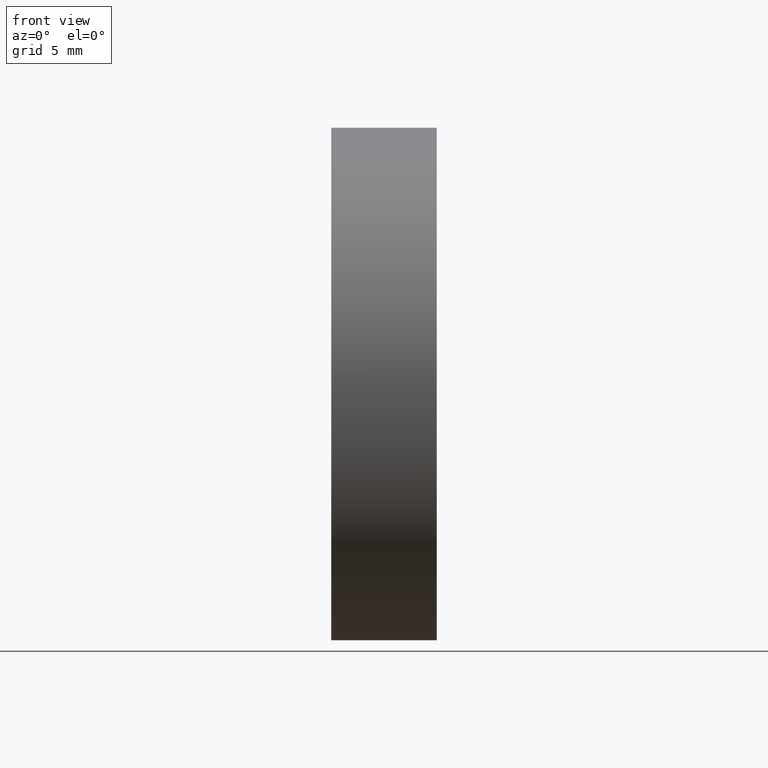
[diagram: clean part render]
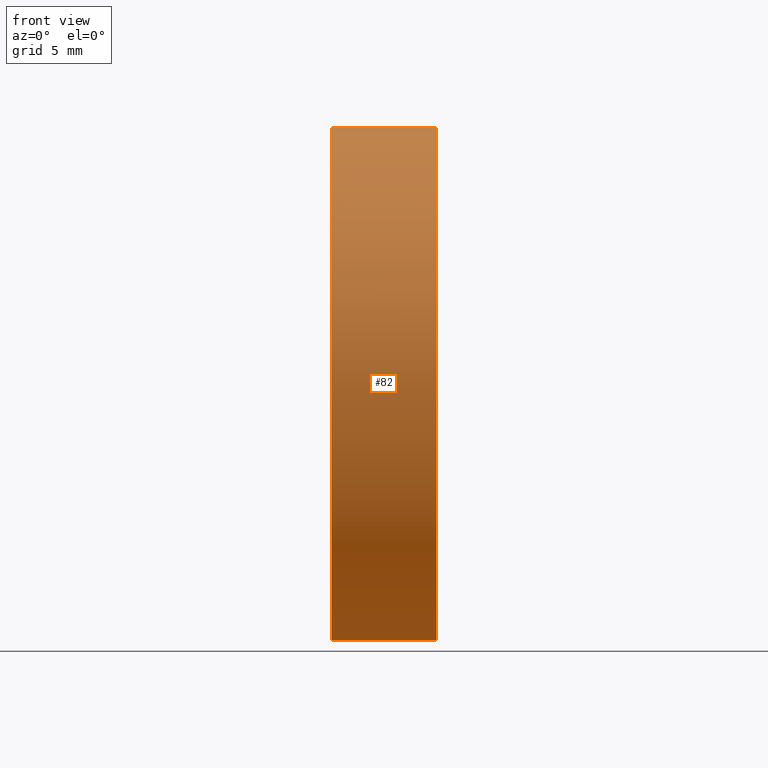
[diagram: same view with one face highlighted and labeled with its STEP entity id]
A machine part, front view. The second image highlights one B-rep face of the part: STEP entity #82.
In plain terms, the highlighted cylindrical surface (partial cylindrical patch) has radius 15 mm, axis along (1, -0, -0).
Its self-contained STEP definition (entity closure, byte-faithful):
#6 = CIRCLE ( 'NONE', #113, 15.00000000000000000 ) ;
#10 = DIRECTION ( 'NONE',  ( 0.000000000000000000, 0.000000000000000000, -1.000000000000000000 ) ) ;
#13 = ORIENTED_EDGE ( 'NONE', *, *, #194, .T. ) ;
#18 = EDGE_CURVE ( 'NONE', #29, #40, #191, .T. ) ;
#29 = VERTEX_POINT ( 'NONE', #115 ) ;
#30 = DIRECTION ( 'NONE',  ( 1.000000000000000000, -0.000000000000000000, -0.000000000000000000 ) ) ;
#40 = VERTEX_POINT ( 'NONE', #73 ) ;
#45 = ORIENTED_EDGE ( 'NONE', *, *, #136, .F. ) ;
#55 = VERTEX_POINT ( 'NONE', #85 ) ;
#56 = DIRECTION ( 'NONE',  ( 1.000000000000000000, -0.000000000000000000, -0.000000000000000000 ) ) ;
#60 = DIRECTION ( 'NONE',  ( 0.000000000000000000, 0.000000000000000000, -1.000000000000000000 ) ) ;
#61 = AXIS2_PLACEMENT_3D ( 'NONE', #167, #139, #60 ) ;
#72 = FACE_OUTER_BOUND ( 'NONE', #86, .T. ) ;
#73 = CARTESIAN_POINT ( 'NONE',  ( -1.208496738073276077E-15, 0.000000000000000000, -15.00000000000000000 ) ) ;
#74 = CYLINDRICAL_SURFACE ( 'NONE', #61, 15.00000000000000000 ) ;
#79 = CARTESIAN_POINT ( 'NONE',  ( 0.000000000000000000, 0.000000000000000000, -15.00000000000000000 ) ) ;
#81 = VECTOR ( 'NONE', #127, 1000.000000000000000 ) ;
#82 = ADVANCED_FACE ( 'NONE', ( #72 ), #74, .T. ) ;
#85 = CARTESIAN_POINT ( 'NONE',  ( -6.170000000000001705, 0.000000000000000000, -15.00000000000000355 ) ) ;
#86 = EDGE_LOOP ( 'NONE', ( #45, #151, #13, #121 ) ) ;
#91 = DIRECTION ( 'NONE',  ( 1.000000000000000000, -0.000000000000000000, -0.000000000000000000 ) ) ;
#99 = AXIS2_PLACEMENT_3D ( 'NONE', #154, #56, #10 ) ;
#104 = LINE ( 'NONE', #169, #145 ) ;
#106 = CARTESIAN_POINT ( 'NONE',  ( -6.170000000000000817, 0.000000000000000000, 0.000000000000000000 ) ) ;
#113 = AXIS2_PLACEMENT_3D ( 'NONE', #106, #91, #172 ) ;
#115 = CARTESIAN_POINT ( 'NONE',  ( -1.208496738073276077E-15, 1.836970198721029589E-15, 15.00000000000000000 ) ) ;
#121 = ORIENTED_EDGE ( 'NONE', *, *, #18, .F. ) ;
#122 = LINE ( 'NONE', #79, #81 ) ;
#127 = DIRECTION ( 'NONE',  ( 1.000000000000000000, -0.000000000000000000, -0.000000000000000000 ) ) ;
#136 = EDGE_CURVE ( 'NONE', #200, #29, #104, .T. ) ;
#139 = DIRECTION ( 'NONE',  ( 1.000000000000000000, -0.000000000000000000, -0.000000000000000000 ) ) ;
#145 = VECTOR ( 'NONE', #30, 1000.000000000000000 ) ;
#151 = ORIENTED_EDGE ( 'NONE', *, *, #184, .T. ) ;
#154 = CARTESIAN_POINT ( 'NONE',  ( -1.208496738073276077E-15, 0.000000000000000000, 0.000000000000000000 ) ) ;
#167 = CARTESIAN_POINT ( 'NONE',  ( 0.000000000000000000, 0.000000000000000000, 0.000000000000000000 ) ) ;
#169 = CARTESIAN_POINT ( 'NONE',  ( 0.000000000000000000, 1.836970198721029589E-15, 15.00000000000000000 ) ) ;
#172 = DIRECTION ( 'NONE',  ( 0.000000000000000000, 0.000000000000000000, -1.000000000000000000 ) ) ;
#184 = EDGE_CURVE ( 'NONE', #200, #55, #6, .T. ) ;
#185 = CARTESIAN_POINT ( 'NONE',  ( -6.170000000000001705, 1.836970198721030378E-15, 15.00000000000000355 ) ) ;
#191 = CIRCLE ( 'NONE', #99, 15.00000000000000000 ) ;
#194 = EDGE_CURVE ( 'NONE', #55, #40, #122, .T. ) ;
#200 = VERTEX_POINT ( 'NONE', #185 ) ;